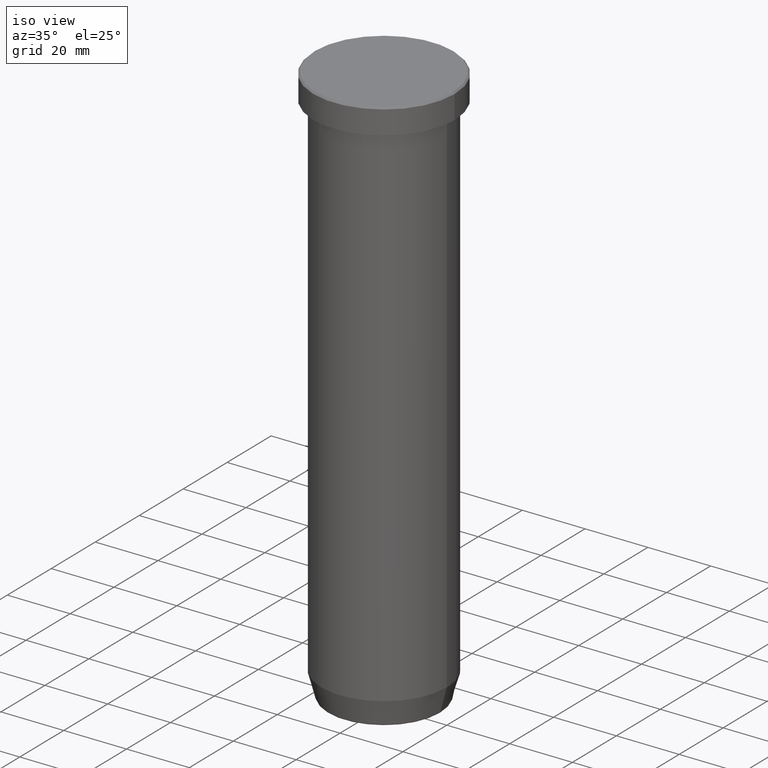
[diagram: clean part render]
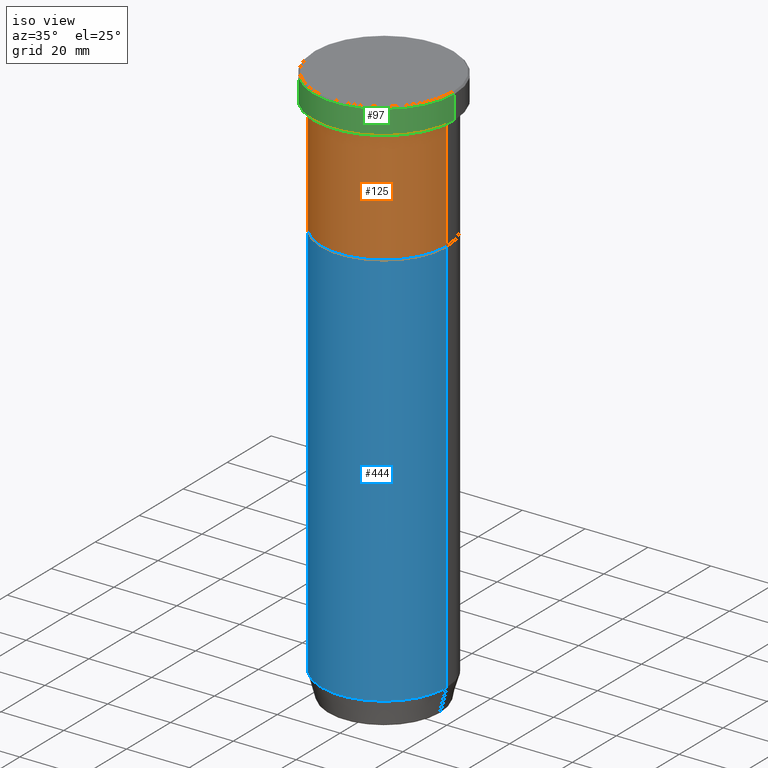
[diagram: same view with three faces highlighted in distinct colors, each labeled with its STEP entity id]
A machine part, iso view with three faces highlighted in distinct colors.
Their STEP definitions:

[orange] entity #125 — the highlighted cylindrical surface (partial cylindrical patch) has radius 20 mm, axis along (-0, -0, 1).
#15 = CARTESIAN_POINT ( 'NONE',  ( -20.00000000000000000, 2.449293598294706513E-15, -8.999999999999998224 ) ) ;
#23 = CARTESIAN_POINT ( 'NONE',  ( 20.00000000000000000, 0.000000000000000000, -45.00000000000000000 ) ) ;
#53 = CIRCLE ( 'NONE', #156, 20.00000000000000000 ) ;
#83 = CARTESIAN_POINT ( 'NONE',  ( -20.00000000000000000, 2.449293598294706513E-15, 0.000000000000000000 ) ) ;
#92 = DIRECTION ( 'NONE',  ( -0.000000000000000000, -0.000000000000000000, 1.000000000000000000 ) ) ;
#94 = FACE_OUTER_BOUND ( 'NONE', #597, .T. ) ;
#100 = AXIS2_PLACEMENT_3D ( 'NONE', #593, #173, #359 ) ;
#116 = EDGE_CURVE ( 'NONE', #351, #403, #507, .T. ) ;
#125 = ADVANCED_FACE ( 'NONE', ( #94 ), #541, .T. ) ;
#138 = EDGE_CURVE ( 'NONE', #351, #389, #360, .T. ) ;
#139 = DIRECTION ( 'NONE',  ( -0.000000000000000000, -0.000000000000000000, 1.000000000000000000 ) ) ;
#140 = CARTESIAN_POINT ( 'NONE',  ( 0.000000000000000000, 0.000000000000000000, -8.999999999999998224 ) ) ;
#148 = ORIENTED_EDGE ( 'NONE', *, *, #307, .T. ) ;
#156 = AXIS2_PLACEMENT_3D ( 'NONE', #140, #471, #281 ) ;
#164 = ORIENTED_EDGE ( 'NONE', *, *, #116, .F. ) ;
#173 = DIRECTION ( 'NONE',  ( -0.000000000000000000, -0.000000000000000000, 1.000000000000000000 ) ) ;
#194 = CARTESIAN_POINT ( 'NONE',  ( 20.00000000000000000, 0.000000000000000000, -8.999999999999998224 ) ) ;
#201 = AXIS2_PLACEMENT_3D ( 'NONE', #314, #220, #405 ) ;
#220 = DIRECTION ( 'NONE',  ( -0.000000000000000000, -0.000000000000000000, 1.000000000000000000 ) ) ;
#259 = ORIENTED_EDGE ( 'NONE', *, *, #138, .T. ) ;
#278 = CARTESIAN_POINT ( 'NONE',  ( 20.00000000000000000, 0.000000000000000000, 0.000000000000000000 ) ) ;
#280 = EDGE_CURVE ( 'NONE', #403, #446, #53, .T. ) ;
#281 = DIRECTION ( 'NONE',  ( 1.000000000000000000, 0.000000000000000000, 0.000000000000000000 ) ) ;
#307 = EDGE_CURVE ( 'NONE', #389, #446, #368, .T. ) ;
#314 = CARTESIAN_POINT ( 'NONE',  ( 0.000000000000000000, 0.000000000000000000, 0.000000000000000000 ) ) ;
#322 = CARTESIAN_POINT ( 'NONE',  ( -20.00000000000000000, 2.449293598294706513E-15, -45.00000000000000000 ) ) ;
#340 = VECTOR ( 'NONE', #139, 1000.000000000000000 ) ;
#349 = VECTOR ( 'NONE', #92, 1000.000000000000000 ) ;
#351 = VERTEX_POINT ( 'NONE', #322 ) ;
#359 = DIRECTION ( 'NONE',  ( 1.000000000000000000, 0.000000000000000000, 0.000000000000000000 ) ) ;
#360 = CIRCLE ( 'NONE', #100, 20.00000000000000000 ) ;
#368 = LINE ( 'NONE', #278, #340 ) ;
#389 = VERTEX_POINT ( 'NONE', #23 ) ;
#396 = ORIENTED_EDGE ( 'NONE', *, *, #280, .F. ) ;
#403 = VERTEX_POINT ( 'NONE', #15 ) ;
#405 = DIRECTION ( 'NONE',  ( 1.000000000000000000, 0.000000000000000000, 0.000000000000000000 ) ) ;
#446 = VERTEX_POINT ( 'NONE', #194 ) ;
#471 = DIRECTION ( 'NONE',  ( -0.000000000000000000, -0.000000000000000000, 1.000000000000000000 ) ) ;
#507 = LINE ( 'NONE', #83, #349 ) ;
#541 = CYLINDRICAL_SURFACE ( 'NONE', #201, 20.00000000000000000 ) ;
#593 = CARTESIAN_POINT ( 'NONE',  ( 0.000000000000000000, 0.000000000000000000, -45.00000000000000000 ) ) ;
#597 = EDGE_LOOP ( 'NONE', ( #164, #259, #148, #396 ) ) ;

[blue] entity #444 — the highlighted cylindrical surface (partial cylindrical patch) has radius 20 mm, axis along (-0, -0, 1).
#20 = DIRECTION ( 'NONE',  ( -0.000000000000000000, -0.000000000000000000, 1.000000000000000000 ) ) ;
#22 = EDGE_CURVE ( 'NONE', #241, #36, #417, .T. ) ;
#24 = CARTESIAN_POINT ( 'NONE',  ( 20.00000000000000000, 0.000000000000000000, -45.00000000000000000 ) ) ;
#36 = VERTEX_POINT ( 'NONE', #24 ) ;
#70 = CARTESIAN_POINT ( 'NONE',  ( 0.000000000000000000, 0.000000000000000000, -45.00000000000000000 ) ) ;
#71 = CYLINDRICAL_SURFACE ( 'NONE', #550, 20.00000000000000355 ) ;
#84 = VECTOR ( 'NONE', #308, 1000.000000000000000 ) ;
#108 = ORIENTED_EDGE ( 'NONE', *, *, #379, .T. ) ;
#109 = CARTESIAN_POINT ( 'NONE',  ( -20.00000000000000355, 2.449293598294706907E-15, -172.0000000000000000 ) ) ;
#114 = AXIS2_PLACEMENT_3D ( 'NONE', #426, #182, #512 ) ;
#152 = DIRECTION ( 'NONE',  ( 1.000000000000000000, 0.000000000000000000, 0.000000000000000000 ) ) ;
#177 = LINE ( 'NONE', #551, #84 ) ;
#182 = DIRECTION ( 'NONE',  ( -0.000000000000000000, -0.000000000000000000, 1.000000000000000000 ) ) ;
#187 = CARTESIAN_POINT ( 'NONE',  ( 20.00000000000000355, 0.000000000000000000, 0.000000000000000000 ) ) ;
#196 = EDGE_CURVE ( 'NONE', #491, #241, #177, .T. ) ;
#202 = EDGE_LOOP ( 'NONE', ( #553, #409, #108, #542 ) ) ;
#204 = VECTOR ( 'NONE', #374, 1000.000000000000000 ) ;
#211 = AXIS2_PLACEMENT_3D ( 'NONE', #70, #572, #293 ) ;
#241 = VERTEX_POINT ( 'NONE', #357 ) ;
#251 = FACE_OUTER_BOUND ( 'NONE', #202, .T. ) ;
#293 = DIRECTION ( 'NONE',  ( 1.000000000000000000, 0.000000000000000000, 0.000000000000000000 ) ) ;
#308 = DIRECTION ( 'NONE',  ( -0.000000000000000000, -0.000000000000000000, 1.000000000000000000 ) ) ;
#323 = EDGE_CURVE ( 'NONE', #491, #336, #500, .T. ) ;
#336 = VERTEX_POINT ( 'NONE', #418 ) ;
#357 = CARTESIAN_POINT ( 'NONE',  ( -20.00000000000000000, 2.449293598294706513E-15, -45.00000000000000000 ) ) ;
#374 = DIRECTION ( 'NONE',  ( -0.000000000000000000, -0.000000000000000000, 1.000000000000000000 ) ) ;
#379 = EDGE_CURVE ( 'NONE', #336, #36, #557, .T. ) ;
#409 = ORIENTED_EDGE ( 'NONE', *, *, #323, .T. ) ;
#417 = CIRCLE ( 'NONE', #211, 20.00000000000000000 ) ;
#418 = CARTESIAN_POINT ( 'NONE',  ( 20.00000000000000355, 0.000000000000000000, -172.0000000000000000 ) ) ;
#426 = CARTESIAN_POINT ( 'NONE',  ( 0.000000000000000000, 0.000000000000000000, -172.0000000000000000 ) ) ;
#429 = CARTESIAN_POINT ( 'NONE',  ( 0.000000000000000000, 0.000000000000000000, 0.000000000000000000 ) ) ;
#444 = ADVANCED_FACE ( 'NONE', ( #251 ), #71, .T. ) ;
#491 = VERTEX_POINT ( 'NONE', #109 ) ;
#500 = CIRCLE ( 'NONE', #114, 20.00000000000000355 ) ;
#512 = DIRECTION ( 'NONE',  ( 1.000000000000000000, 0.000000000000000000, 0.000000000000000000 ) ) ;
#542 = ORIENTED_EDGE ( 'NONE', *, *, #22, .F. ) ;
#550 = AXIS2_PLACEMENT_3D ( 'NONE', #429, #20, #152 ) ;
#551 = CARTESIAN_POINT ( 'NONE',  ( -20.00000000000000355, 2.449293598294706907E-15, 0.000000000000000000 ) ) ;
#553 = ORIENTED_EDGE ( 'NONE', *, *, #196, .F. ) ;
#557 = LINE ( 'NONE', #187, #204 ) ;
#572 = DIRECTION ( 'NONE',  ( -0.000000000000000000, -0.000000000000000000, 1.000000000000000000 ) ) ;

[green] entity #97 — the highlighted cylindrical surface (partial cylindrical patch) has radius 22.5 mm, axis along (-0, -0, 1).
#21 = ORIENTED_EDGE ( 'NONE', *, *, #570, .T. ) ;
#61 = AXIS2_PLACEMENT_3D ( 'NONE', #133, #132, #455 ) ;
#87 = DIRECTION ( 'NONE',  ( -0.000000000000000000, -0.000000000000000000, 1.000000000000000000 ) ) ;
#95 = VECTOR ( 'NONE', #87, 1000.000000000000000 ) ;
#97 = ADVANCED_FACE ( 'NONE', ( #355 ), #547, .T. ) ;
#102 = VERTEX_POINT ( 'NONE', #448 ) ;
#132 = DIRECTION ( 'NONE',  ( -0.000000000000000000, -0.000000000000000000, 1.000000000000000000 ) ) ;
#133 = CARTESIAN_POINT ( 'NONE',  ( 0.000000000000000000, 0.000000000000000000, 0.000000000000000000 ) ) ;
#163 = DIRECTION ( 'NONE',  ( 0.000000000000000000, 0.000000000000000000, -1.000000000000000000 ) ) ;
#169 = CARTESIAN_POINT ( 'NONE',  ( -22.50000000000000000, 2.755455298081544778E-15, 0.000000000000000000 ) ) ;
#224 = EDGE_LOOP ( 'NONE', ( #381, #234, #21, #505 ) ) ;
#225 = DIRECTION ( 'NONE',  ( -0.000000000000000000, -0.000000000000000000, 1.000000000000000000 ) ) ;
#234 = ORIENTED_EDGE ( 'NONE', *, *, #587, .T. ) ;
#267 = AXIS2_PLACEMENT_3D ( 'NONE', #410, #225, #584 ) ;
#279 = CARTESIAN_POINT ( 'NONE',  ( -22.50000000000000000, 2.755455298081544778E-15, -0.4999999999999935052 ) ) ;
#296 = VERTEX_POINT ( 'NONE', #414 ) ;
#348 = DIRECTION ( 'NONE',  ( 1.000000000000000000, 0.000000000000000000, 0.000000000000000000 ) ) ;
#355 = FACE_OUTER_BOUND ( 'NONE', #224, .T. ) ;
#361 = VERTEX_POINT ( 'NONE', #416 ) ;
#373 = CIRCLE ( 'NONE', #267, 22.50000000000000000 ) ;
#375 = VERTEX_POINT ( 'NONE', #279 ) ;
#381 = ORIENTED_EDGE ( 'NONE', *, *, #590, .F. ) ;
#390 = VECTOR ( 'NONE', #404, 1000.000000000000000 ) ;
#399 = LINE ( 'NONE', #169, #390 ) ;
#401 = AXIS2_PLACEMENT_3D ( 'NONE', #487, #163, #348 ) ;
#404 = DIRECTION ( 'NONE',  ( -0.000000000000000000, -0.000000000000000000, 1.000000000000000000 ) ) ;
#410 = CARTESIAN_POINT ( 'NONE',  ( 0.000000000000000000, 0.000000000000000000, -7.999999999999998224 ) ) ;
#414 = CARTESIAN_POINT ( 'NONE',  ( 22.50000000000000000, 0.000000000000000000, -7.999999999999998224 ) ) ;
#416 = CARTESIAN_POINT ( 'NONE',  ( 22.50000000000000000, 0.000000000000000000, -0.4999999999999935052 ) ) ;
#436 = EDGE_CURVE ( 'NONE', #361, #375, #588, .T. ) ;
#448 = CARTESIAN_POINT ( 'NONE',  ( -22.50000000000000000, 2.755455298081544778E-15, -7.999999999999998224 ) ) ;
#455 = DIRECTION ( 'NONE',  ( 1.000000000000000000, 0.000000000000000000, 0.000000000000000000 ) ) ;
#487 = CARTESIAN_POINT ( 'NONE',  ( 0.000000000000000000, 0.000000000000000000, -0.4999999999999935052 ) ) ;
#505 = ORIENTED_EDGE ( 'NONE', *, *, #436, .T. ) ;
#547 = CYLINDRICAL_SURFACE ( 'NONE', #61, 22.50000000000000000 ) ;
#549 = CARTESIAN_POINT ( 'NONE',  ( 22.50000000000000000, 0.000000000000000000, 0.000000000000000000 ) ) ;
#570 = EDGE_CURVE ( 'NONE', #296, #361, #582, .T. ) ;
#582 = LINE ( 'NONE', #549, #95 ) ;
#584 = DIRECTION ( 'NONE',  ( 1.000000000000000000, 0.000000000000000000, 0.000000000000000000 ) ) ;
#587 = EDGE_CURVE ( 'NONE', #102, #296, #373, .T. ) ;
#588 = CIRCLE ( 'NONE', #401, 22.50000000000000000 ) ;
#590 = EDGE_CURVE ( 'NONE', #102, #375, #399, .T. ) ;